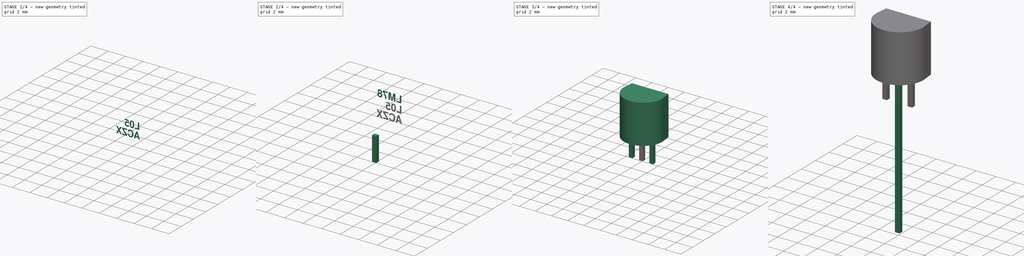
[diagram: build sequence overview — one tinted view per stage of 4, left to right]
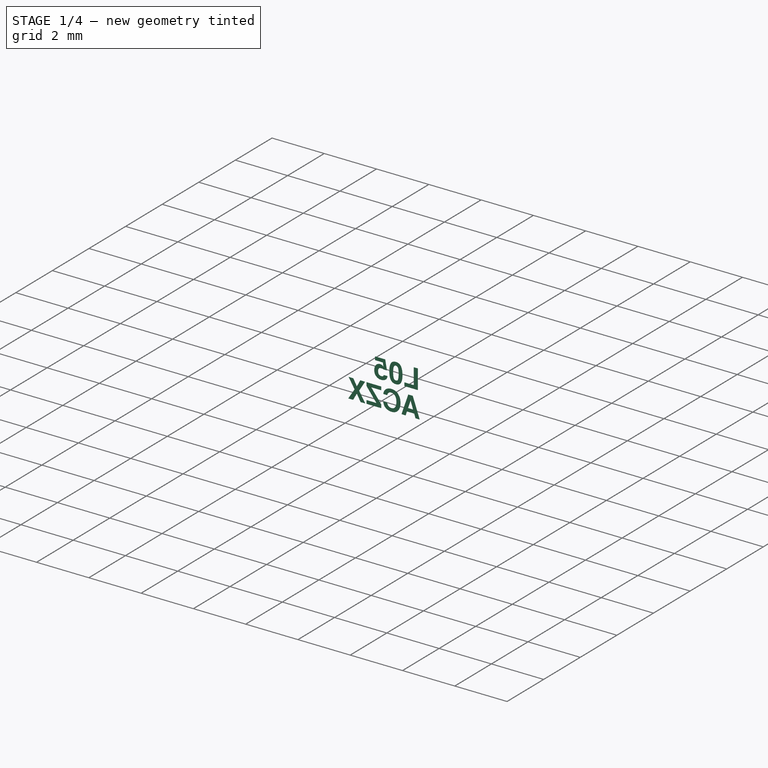
[diagram: stage 1 of 4 — iso view after this stage's code; geometry added in this stage tinted green]
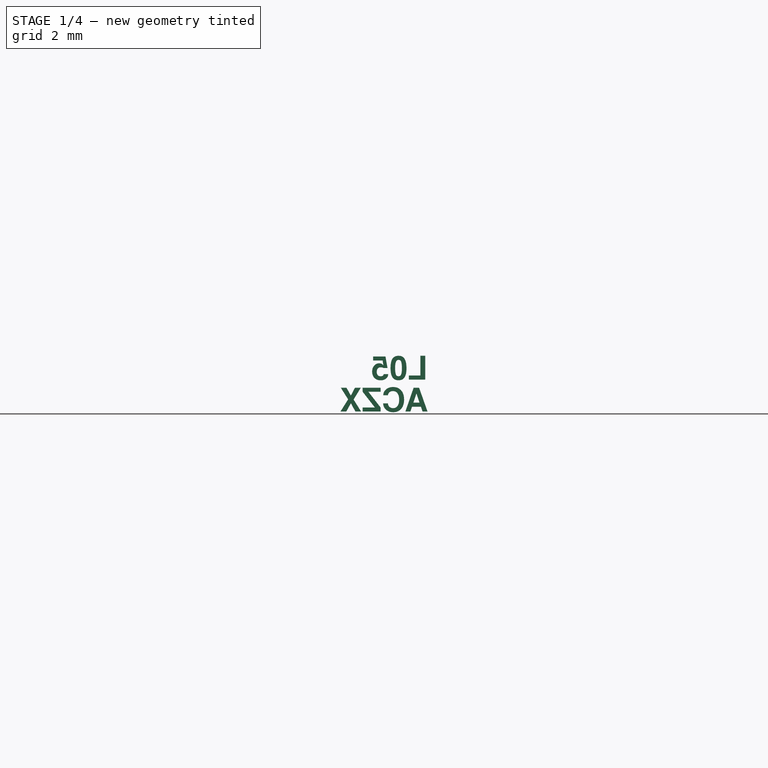
[diagram: stage 1 of 4 — front view after this stage's code; geometry added in this stage tinted green]
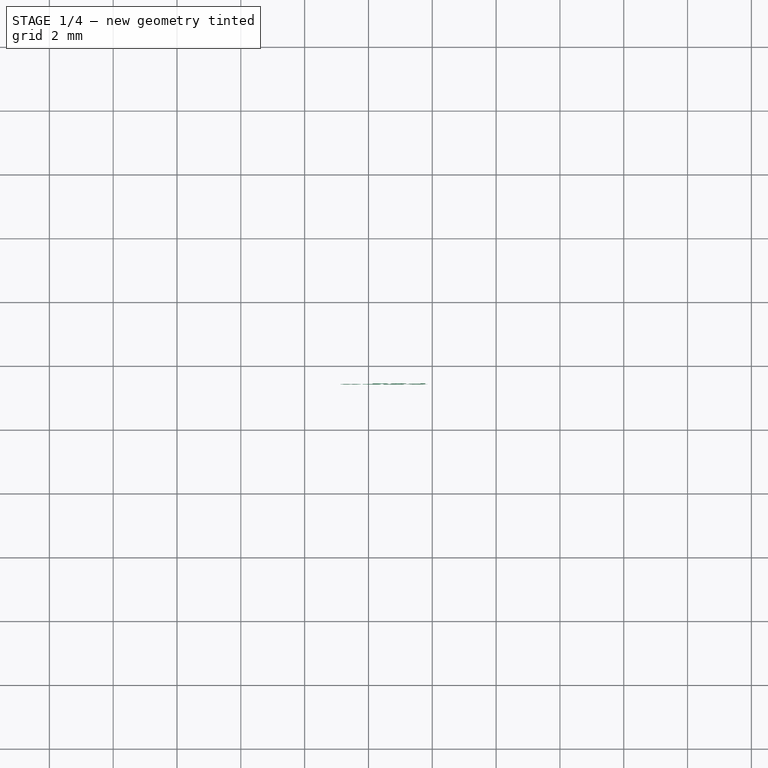
[diagram: stage 1 of 4 — top view after this stage's code; geometry added in this stage tinted green]
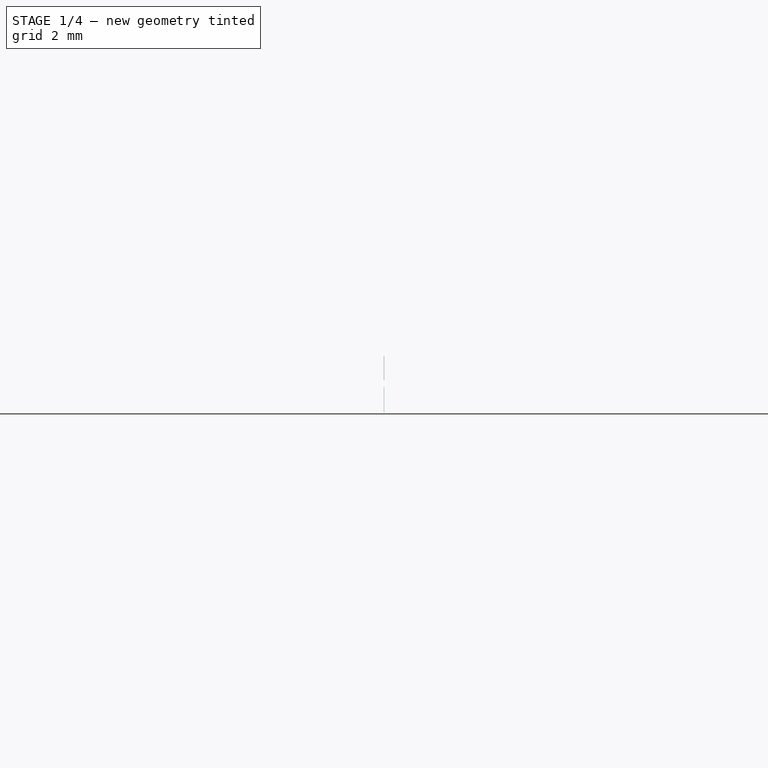
[diagram: stage 1 of 4 — right view after this stage's code; geometry added in this stage tinted green]
FCSTD DOCUMENT  (FreeCAD 0.19R16945 (Git))
Label: TO-92 Straight
License: All rights reserved
LicenseURL: http://en.wikipedia.org/wiki/All_rights_reserved
objects: PartDesign::Body×8, Sketcher::SketchObject×4, PartDesign::Pad×4, PartDesign::FeatureBase×4, Part::Part2DObjectPython×3, Part::Extrusion×3, Part::MultiFuse×1
note: 31 computed .brp shape members not serialized (recipe doc carries the construction recipe); baked Part::Feature solids carry a one-line shape summary decoded from their .brp

FEATURE [PartDesign::Body] Body  label="CaseRear"
  Group = -> [Sketch,Pad]
  Origin = -> Origin
  Tip = -> Pad
FEATURE [Sketcher::SketchObject] Sketch001
  MapMode = 5
  Support = -> [XY_Plane001]
  expr: Constraints[9] = (3.05 + 4.19) / 2 - (2.13 + 2.66) / 2
  expr: Constraints[8] = 0.95 * Sketch.Constraints.width
  expr: Constraints[6] = (0.3 + 0.52) / 2 / 2
  expr: Constraints[5] = Sketch.Constraints.width
  sketch-geometry (4):
    g0: LineSegment StartX=-2.38 StartY=0.205 StartZ=0 EndX=2.38 EndY=0.205 EndZ=0
    g1: LineSegment StartX=2.38 StartY=0.205 StartZ=0 EndX=2.261 EndY=1.43 EndZ=0
    g2: LineSegment StartX=2.261 StartY=1.43 StartZ=0 EndX=-2.261 EndY=1.43 EndZ=0
    g3: LineSegment StartX=-2.261 StartY=1.43 StartZ=0 EndX=-2.38 EndY=0.205 EndZ=0
  constraints (10):
    c: Coincident(g1,g2)
    c: Coincident(g2,g3)
    c: Coincident(g3,g0)
    c: Symmetric(g1,g2,g-2)
    c: Symmetric(g0,g0,g-2)
    c: DistanceX(g0,g0) = 4.76
    c: DistanceY(g-1,g0) = 0.205
    c: Coincident(g1,g0)
    c: DistanceX(g2,g2) = 4.522
    c: DistanceY(g0,g2) = 1.225
FEATURE [PartDesign::Pad] Pad001
  Length = 4.825
  Length2 = 100
  Profile = -> Sketch001
  Type = 0
  expr: Length = (4.32 + 5.33) / 2
FEATURE [Part::Extrusion] Extrude001  label="Text_2"
  Base = -> ShapeString001
  Dir = (0,1,-2e-16)
  DirMode = 2
  FaceMakerClass = Part::FaceMakerBullseye
  LengthFwd = 0.005
  LengthRev = 0
  Solid = false
  Symmetric = false
FEATURE [Part::Extrusion] Extrude002  label="Text_3"
  Base = -> ShapeString002
  Dir = (0,1,-2e-16)
  DirMode = 2
  FaceMakerClass = Part::FaceMakerBullseye
  LengthFwd = 0.005
  LengthRev = 0
  Solid = false
  Symmetric = false
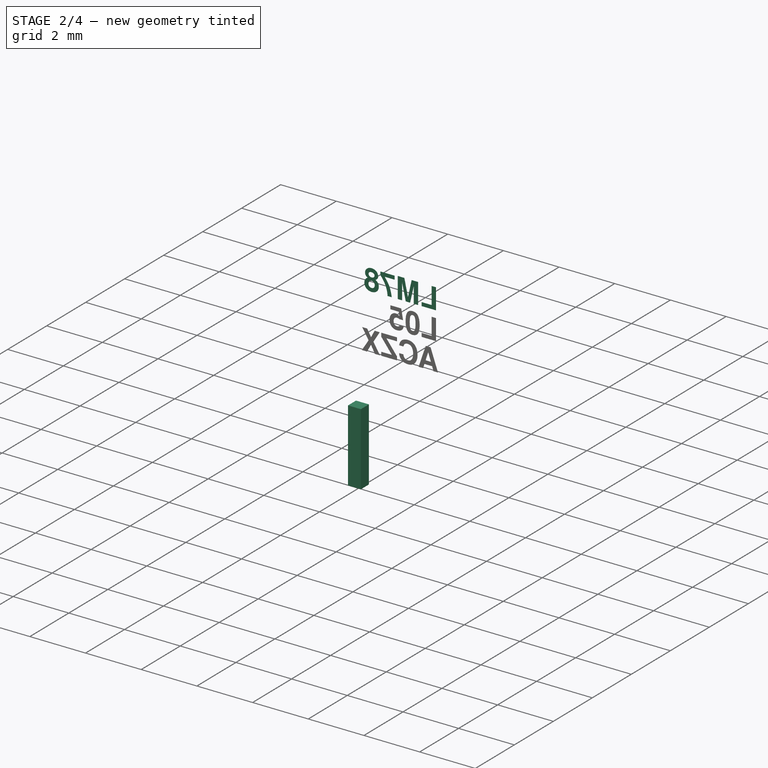
[diagram: stage 2 of 4 — iso view after this stage's code; geometry added in this stage tinted green]
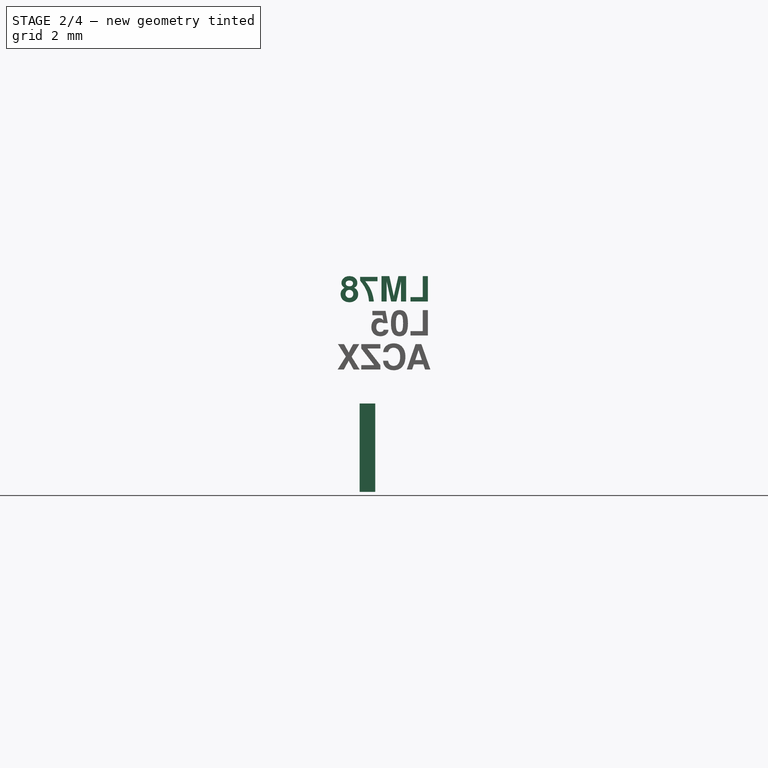
[diagram: stage 2 of 4 — front view after this stage's code; geometry added in this stage tinted green]
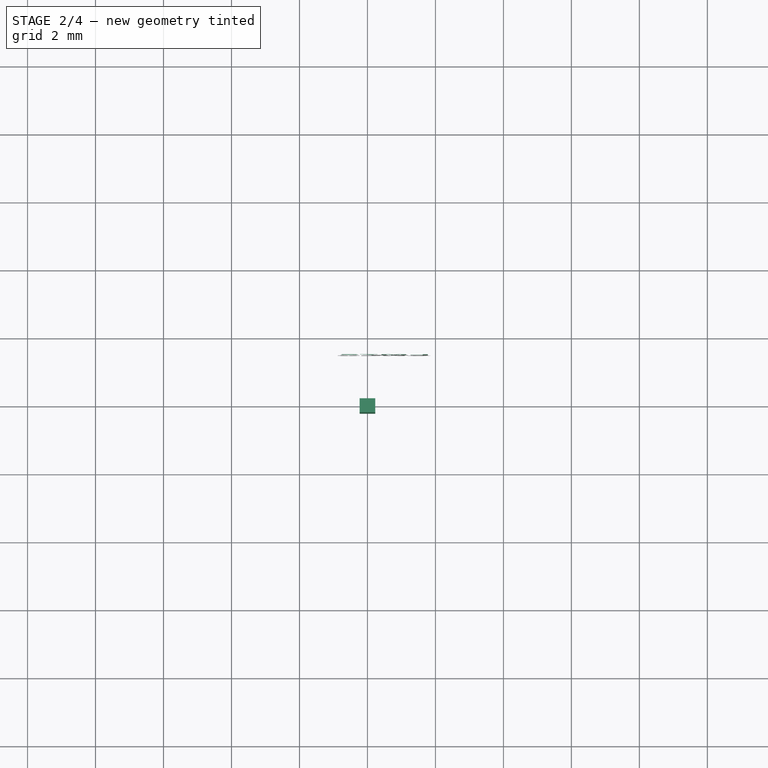
[diagram: stage 2 of 4 — top view after this stage's code; geometry added in this stage tinted green]
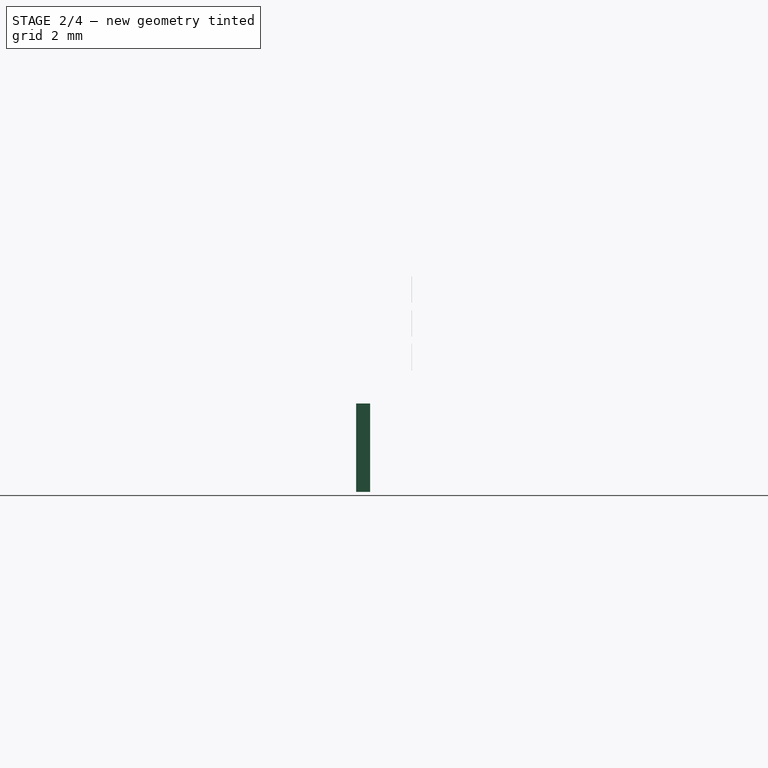
[diagram: stage 2 of 4 — right view after this stage's code; geometry added in this stage tinted green]
FEATURE [PartDesign::Body] Body002  label="LeadStraightLong"
  Group = -> [Sketch002,Pad002]
  Origin = -> Origin002
  Tip = -> Pad002
FEATURE [Sketcher::SketchObject] Sketch004
  MapMode = 5
  Support = -> [XY_Plane004]
  expr: Constraints[10] = Sketch002.Constraints[10]
  expr: Constraints[9] = Sketch002.Constraints[9]
  sketch-geometry (4):
    g0: LineSegment StartX=-0.23 StartY=-0.205 StartZ=0 EndX=0.23 EndY=-0.205 EndZ=0
    g1: LineSegment StartX=0.23 StartY=-0.205 StartZ=0 EndX=0.23 EndY=0.205 EndZ=0
    g2: LineSegment StartX=0.23 StartY=0.205 StartZ=0 EndX=-0.23 EndY=0.205 EndZ=0
    g3: LineSegment StartX=-0.23 StartY=0.205 StartZ=0 EndX=-0.23 EndY=-0.205 EndZ=0
  constraints (11):
    c: Coincident(g0,g1)
    c: Coincident(g1,g2)
    c: Coincident(g2,g3)
    c: Coincident(g3,g0)
    c: Horizontal(g0)
    c: Horizontal(g2)
    c: Vertical(g1)
    c: Vertical(g3)
    c: Symmetric(g1,g0,g-1)
    c: DistanceX(g2,g2) = 0.46
    c: DistanceY(g1,g1) = 0.41
FEATURE [PartDesign::Pad] Pad004
  Length = 2.6
  Length2 = 100
  Profile = -> Sketch004
  Reversed = true
  Type = 0
FEATURE [PartDesign::Body] Body005  label="LeadStraight_2.6mm_Clone1"
  BaseFeature = -> Body004
  Group = -> [Clone]
  Origin = -> Origin005
  Placement = pos=(1.27,0,0) rot=(0,0,1;0rad)
  Tip = -> Clone
FEATURE [PartDesign::FeatureBase] Clone001
  BaseFeature = -> Body004
FEATURE [PartDesign::Body] Body011  label="LeadStraightLongClone2"
  BaseFeature = -> Body002
  Group = -> [Clone003]
  Origin = -> Origin011
  Placement = pos=(1.27,0,0) rot=(0,0,1;0rad)
  Tip = -> Clone003
FEATURE [Part::Part2DObjectPython] ShapeString  label="Text-1"  # Draft 2D object (typed FeaturePython)
  AttachmentOffset = pos=(0.4,3,0) rot=(0,0,1;0rad)
  FontFile = <userpath>/Desktop/GitHub/freecad-projects/00-fonts/FreeSansBold.ttf
  MapMode = 6
  Placement = pos=(1.861,1.43,3) rot=(0,0.707107,0.707107;3.14159rad)
  Size = 0.4
  String = LM78
  Support = -> [Pad001]
  Tracking = 0
FEATURE [Part::Part2DObjectPython] ShapeString001  label="Text-2"  # Draft 2D object (typed FeaturePython)
  AttachmentOffset = pos=(0.4,2,0) rot=(0,0,1;0rad)
  FontFile = <userpath>/Desktop/GitHub/freecad-projects/00-fonts/FreeSansBold.ttf
  MapMode = 6
  Placement = pos=(1.861,1.43,2) rot=(0,0.707107,0.707107;3.14159rad)
  Size = 0.4
  String = L05
  Support = -> [Pad001]
  Tracking = 0
FEATURE [Part::Part2DObjectPython] ShapeString002  label="Text-3"  # Draft 2D object (typed FeaturePython)
  AttachmentOffset = pos=(0.4,1,0) rot=(0,0,1;0rad)
  FontFile = <userpath>/Desktop/GitHub/freecad-projects/00-fonts/FreeSansBold.ttf
  MapMode = 6
  Placement = pos=(1.861,1.43,1) rot=(0,0.707107,0.707107;3.14159rad)
  Size = 0.4
  String = ACZX
  Support = -> [Pad001]
  Tracking = 0
FEATURE [Part::Extrusion] Extrude  label="Text_1"
  Base = -> ShapeString
  Dir = (0,1,-2e-16)
  DirMode = 2
  FaceMakerClass = Part::FaceMakerBullseye
  LengthFwd = 0.005
  LengthRev = 0
  Solid = false
  Symmetric = false
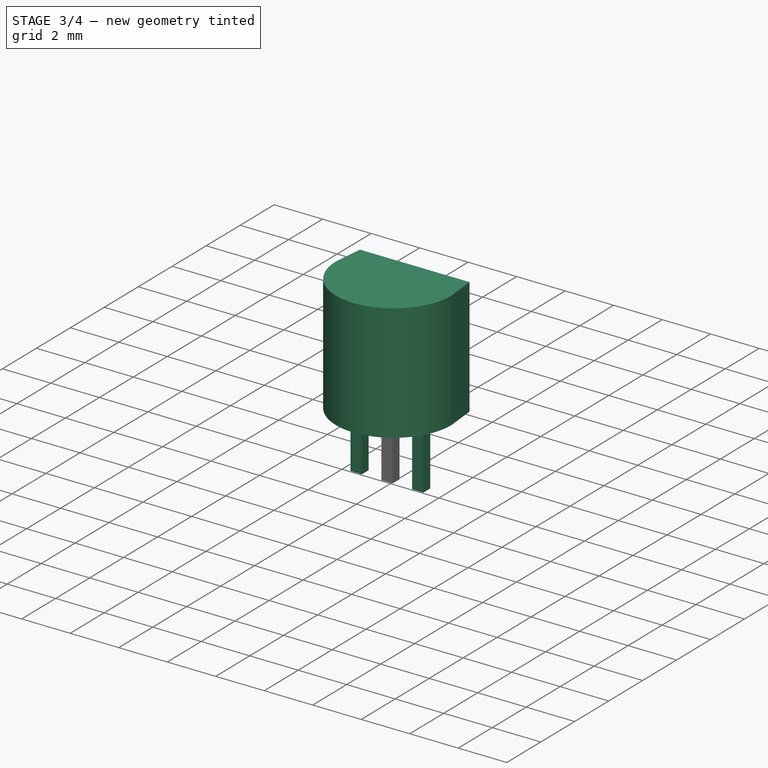
[diagram: stage 3 of 4 — iso view after this stage's code; geometry added in this stage tinted green]
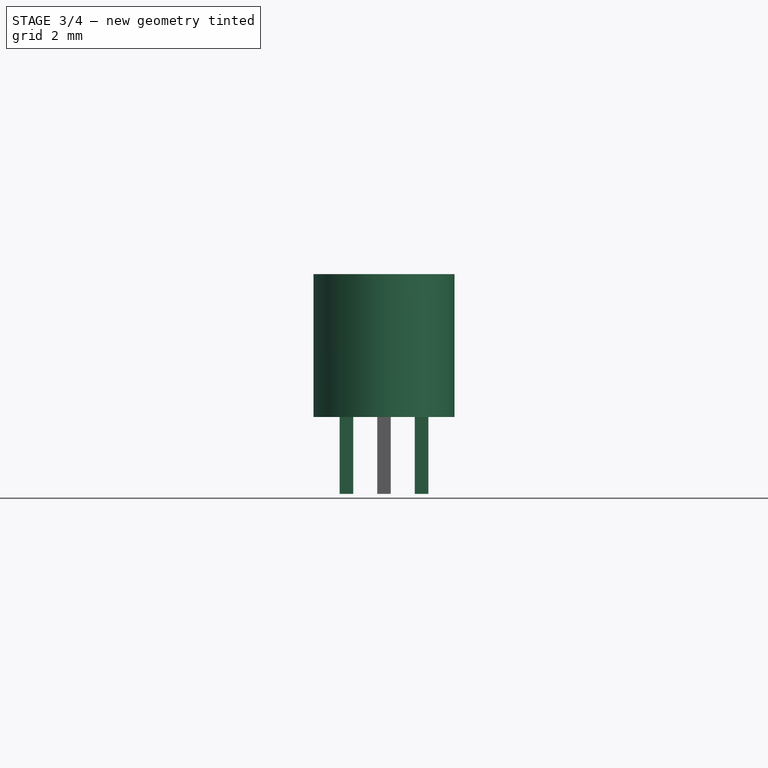
[diagram: stage 3 of 4 — front view after this stage's code; geometry added in this stage tinted green]
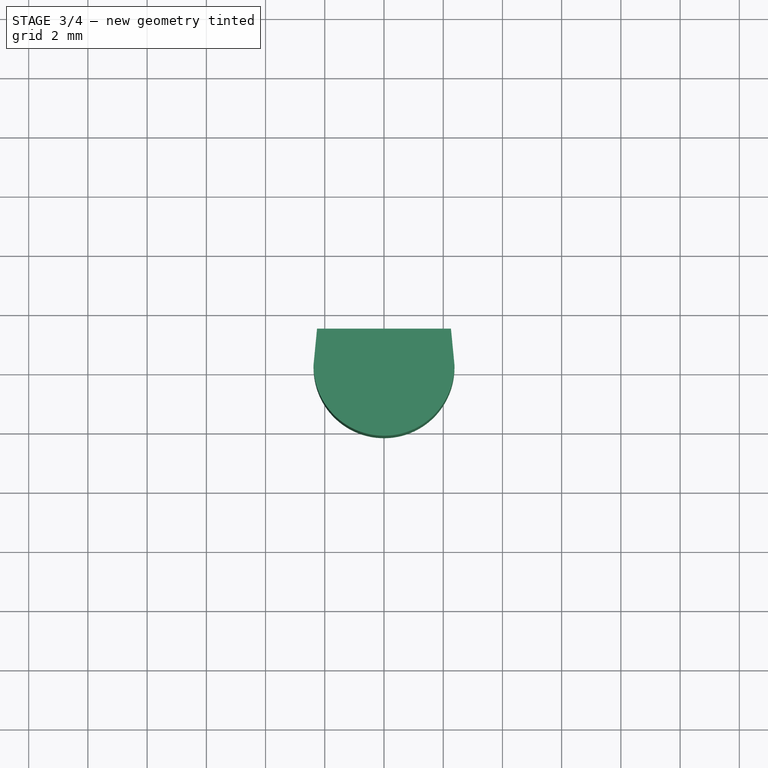
[diagram: stage 3 of 4 — top view after this stage's code; geometry added in this stage tinted green]
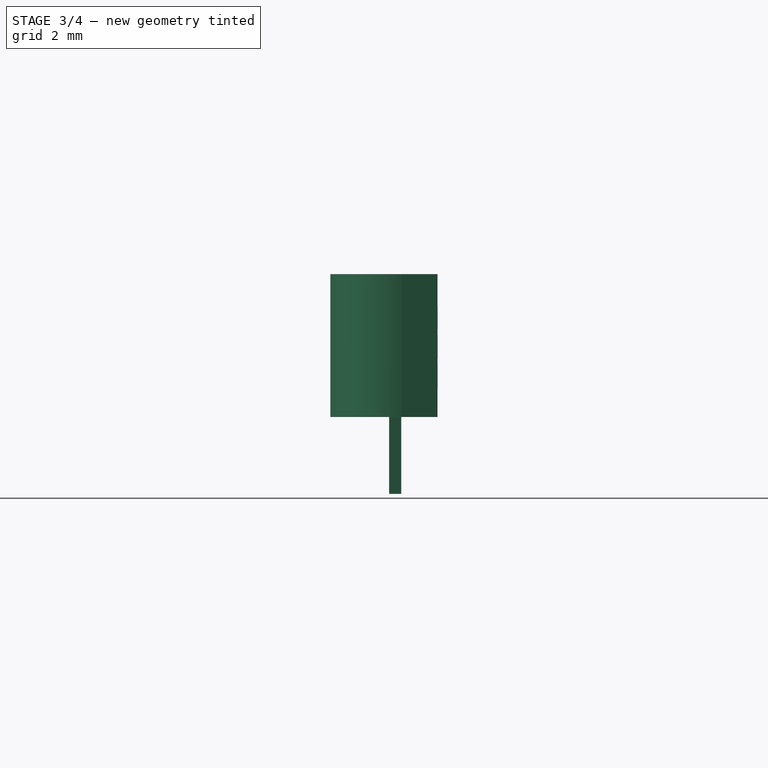
[diagram: stage 3 of 4 — right view after this stage's code; geometry added in this stage tinted green]
FEATURE [Sketcher::SketchObject] Sketch
  MapMode = 5
  Support = -> [XY_Plane]
  expr: Constraints.width = (4.32 + 5.2) / 2
  expr: Constraints[7] = (2.13 + 2.66) / 2
  expr: Constraints[4] = (0.3 + 0.52) / 2 / 2
  sketch-geometry (3):
    g0: ArcOfCircle CenterX=0 CenterY=0.190047 CenterZ=0 NormalX=0 NormalY=0 NormalZ=1 AngleXU=0 Radius=2.38005 StartAngle=3.13531 EndAngle=6.28947
    g1: LineSegment StartX=-2.38 StartY=0.205 StartZ=0 EndX=2.38 EndY=0.205 EndZ=0
    g2: GeomPoint X=0 Y=-2.19 Z=0
  constraints (9):
    c: PointOnObject(g0,g-2)
    c: Coincident(g1,g0)
    c: Coincident(g1,g0)
    c: Horizontal(g1)
    c: DistanceY(g-1,g0) = 0.205
    c: PointOnObject(g2,g0)
    c: PointOnObject(g2,g-2)
    c: DistanceY(g2,g0) = 2.395
    c: DistanceX(g1,g1) = 4.76  'width'
FEATURE [PartDesign::Pad] Pad
  Length = 4.825
  Length2 = 100
  Profile = -> Sketch
  Type = 0
  expr: Length = (4.32 + 5.33) / 2
FEATURE [PartDesign::Body] Body004  label="LeadStraight_2.6mm"
  Group = -> [Sketch004,Pad004]
  Origin = -> Origin004
  Tip = -> Pad004
FEATURE [PartDesign::FeatureBase] Clone
  BaseFeature = -> Body004
FEATURE [Part::MultiFuse] Fusion  label="LM78L05ACZX"
  Shapes = -> [Extrude002,Extrude001,Extrude,Body006,Body005,Body004,Body001,Body]
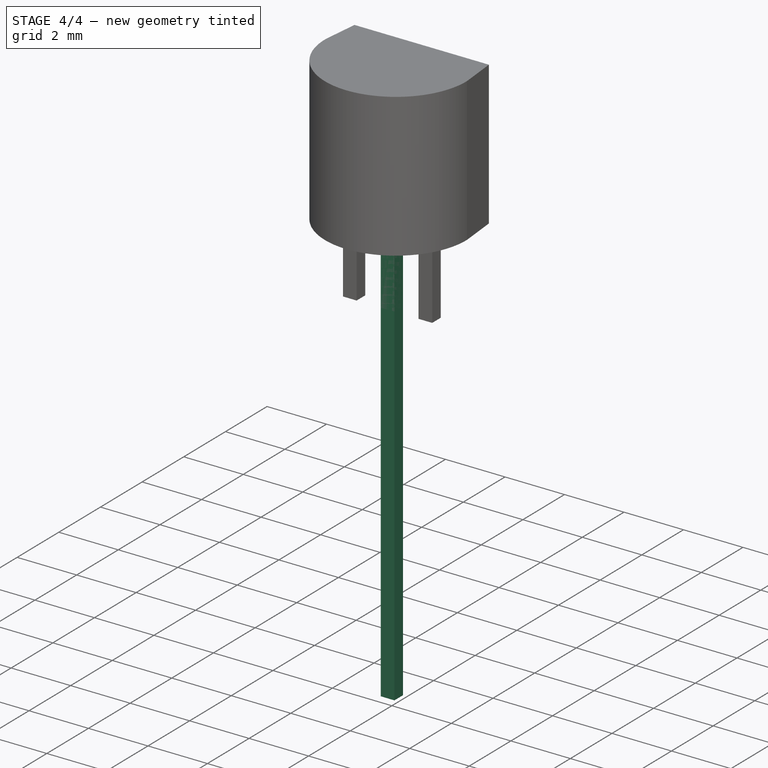
[diagram: stage 4 of 4 — iso view after this stage's code; geometry added in this stage tinted green]
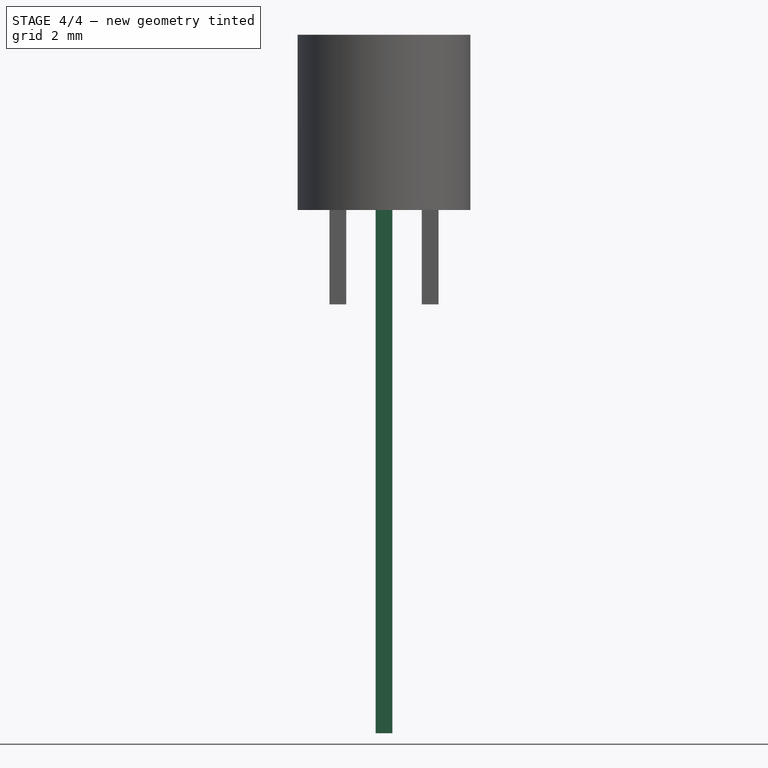
[diagram: stage 4 of 4 — front view after this stage's code; geometry added in this stage tinted green]
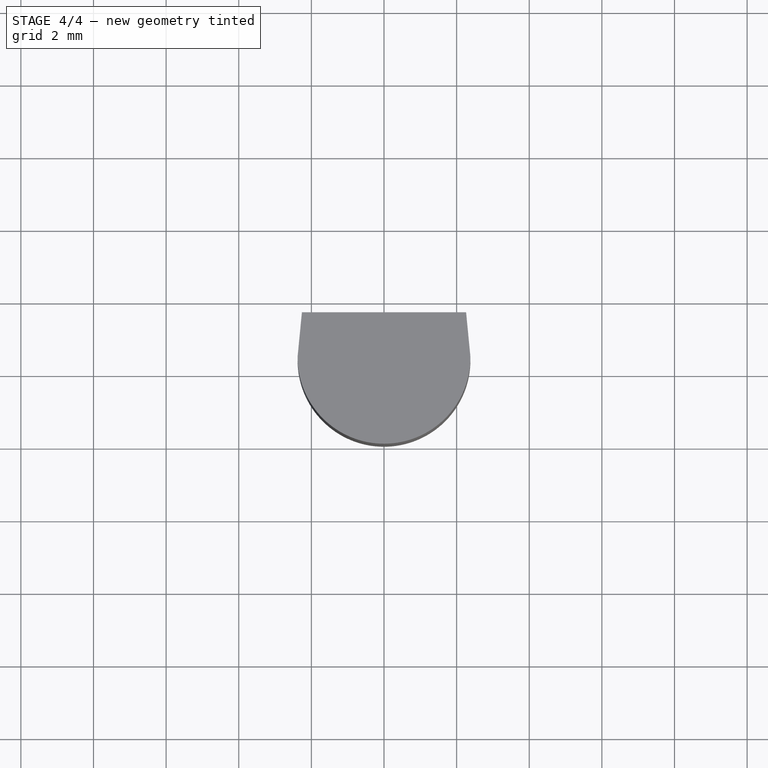
[diagram: stage 4 of 4 — top view after this stage's code; geometry added in this stage tinted green]
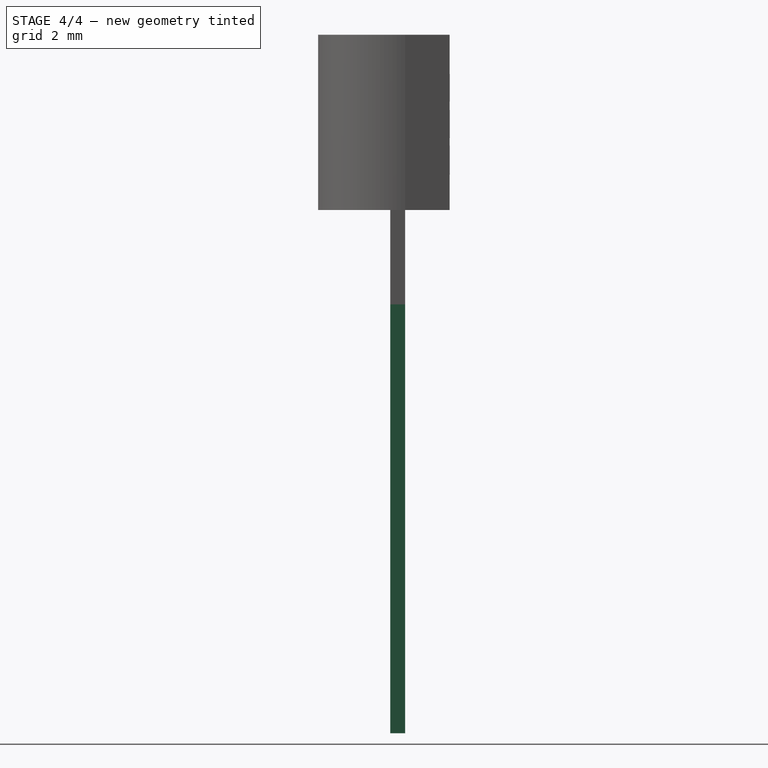
[diagram: stage 4 of 4 — right view after this stage's code; geometry added in this stage tinted green]
FEATURE [PartDesign::Body] Body001  label="CaseFront"
  Group = -> [Sketch001,Pad001]
  Origin = -> Origin001
  Tip = -> Pad001
FEATURE [Sketcher::SketchObject] Sketch002
  MapMode = 5
  Support = -> [XY_Plane002]
  expr: Constraints[10] = (0.3 + 0.52) / 2
  expr: Constraints[9] = (0.36 + 0.5600000000000001) / 2
  sketch-geometry (4):
    g0: LineSegment StartX=-0.23 StartY=-0.205 StartZ=0 EndX=0.23 EndY=-0.205 EndZ=0
    g1: LineSegment StartX=0.23 StartY=-0.205 StartZ=0 EndX=0.23 EndY=0.205 EndZ=0
    g2: LineSegment StartX=0.23 StartY=0.205 StartZ=0 EndX=-0.23 EndY=0.205 EndZ=0
    g3: LineSegment StartX=-0.23 StartY=0.205 StartZ=0 EndX=-0.23 EndY=-0.205 EndZ=0
  constraints (11):
    c: Coincident(g0,g1)
    c: Coincident(g1,g2)
    c: Coincident(g2,g3)
    c: Coincident(g3,g0)
    c: Horizontal(g0)
    c: Horizontal(g2)
    c: Vertical(g1)
    c: Vertical(g3)
    c: Symmetric(g1,g0,g-1)
    c: DistanceX(g2,g2) = 0.46
    c: DistanceY(g1,g1) = 0.41
FEATURE [PartDesign::Pad] Pad002
  Length = 14.41
  Length2 = 100
  Profile = -> Sketch002
  Reversed = true
  Type = 0
  expr: Length = (13.2 + 15.62) / 2
FEATURE [PartDesign::Body] Body006  label="LeadStraight_2.6mm_Clone2"
  BaseFeature = -> Body004
  Group = -> [Clone001]
  Origin = -> Origin006
  Placement = pos=(-1.27,0,0) rot=(0,0,1;0rad)
  Tip = -> Clone001
FEATURE [PartDesign::FeatureBase] Clone002
  BaseFeature = -> Body002
FEATURE [PartDesign::Body] Body010  label="LeadStraightLongClone1"
  BaseFeature = -> Body002
  Group = -> [Clone002]
  Origin = -> Origin010
  Placement = pos=(-1.27,0,0) rot=(0,0,1;0rad)
  Tip = -> Clone002
FEATURE [PartDesign::FeatureBase] Clone003
  BaseFeature = -> Body002
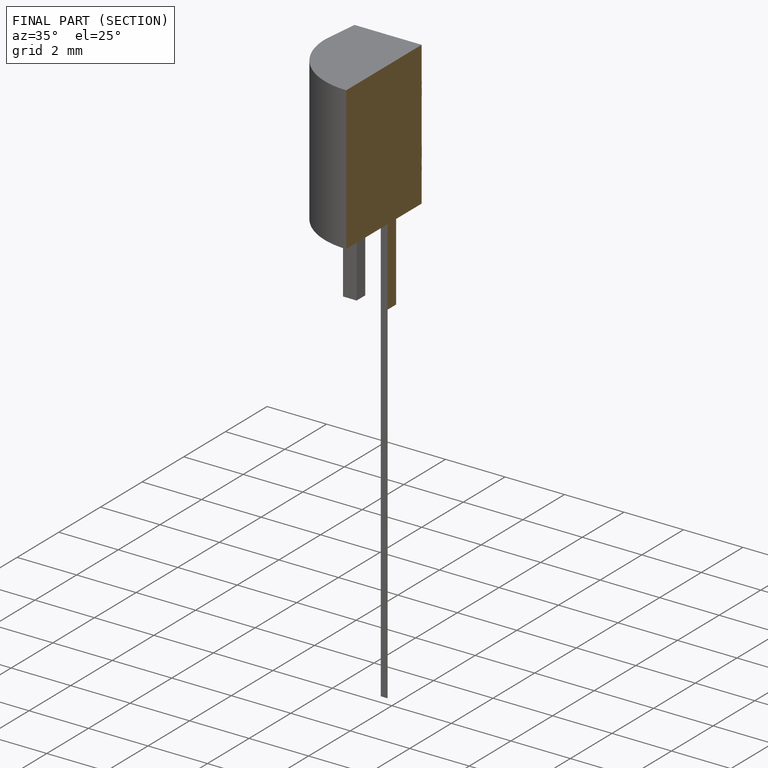
[diagram: finished part — half-section view (interior)]
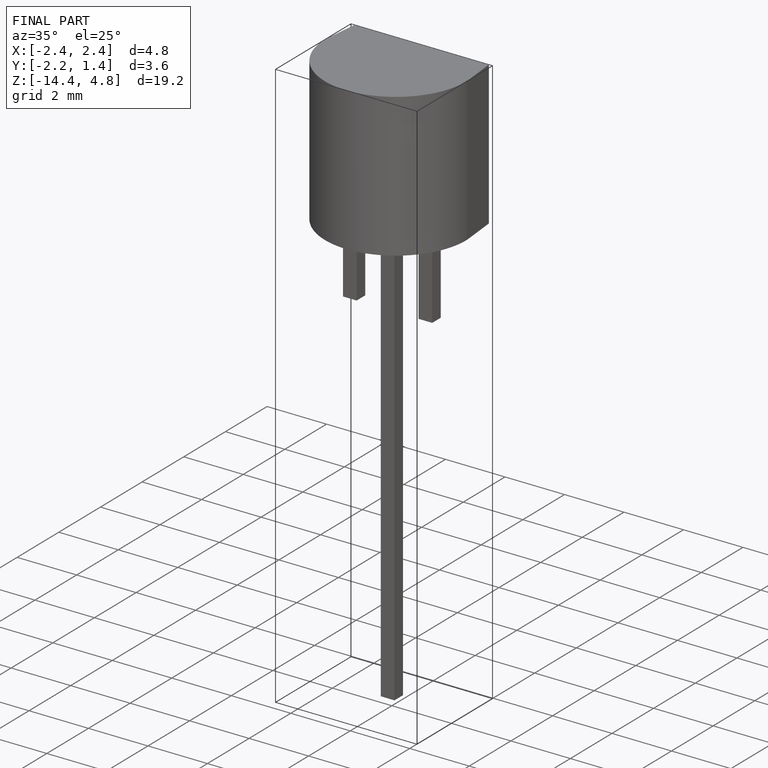
[diagram: finished part — iso view with bounding-box wireframe]
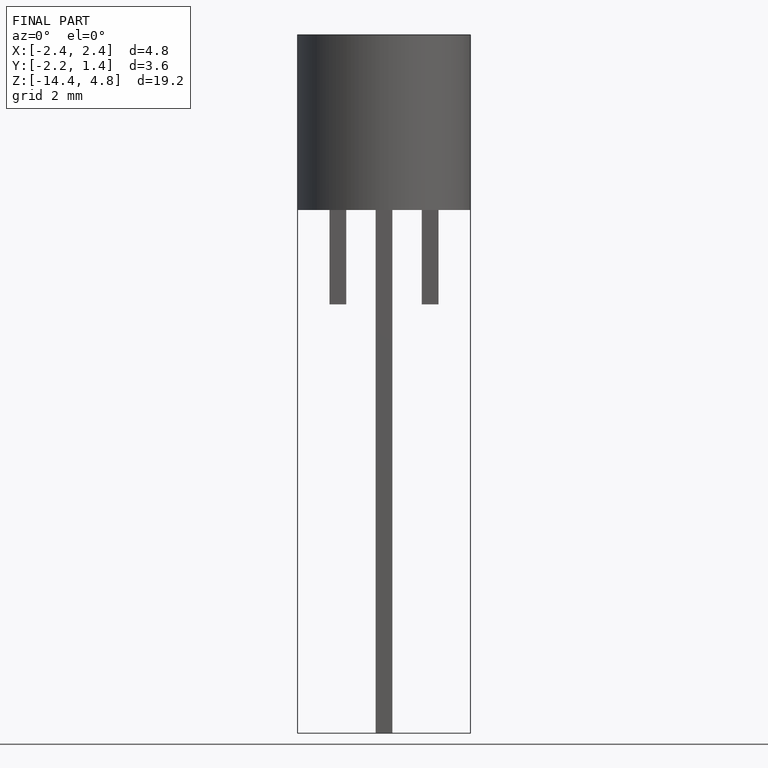
[diagram: finished part — front view with bounding-box wireframe]
